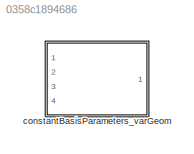
MODEL slx_0358c1894686
KIND library
CONFIG AbsTol = auto
CONFIG EnableMultiTasking = off
CONFIG FixedStep = auto
CONFIG MaxStep = auto
CONFIG MinStep = auto
CONFIG RelTol = 1e-3
CONFIG SampleTimeConstraint = Unconstrained
CONFIG Solver = VariableStepAuto
CONFIG SolverName = VariableStepAuto
CONFIG StartTime = 0.0
CONFIG StopTime = 10.0
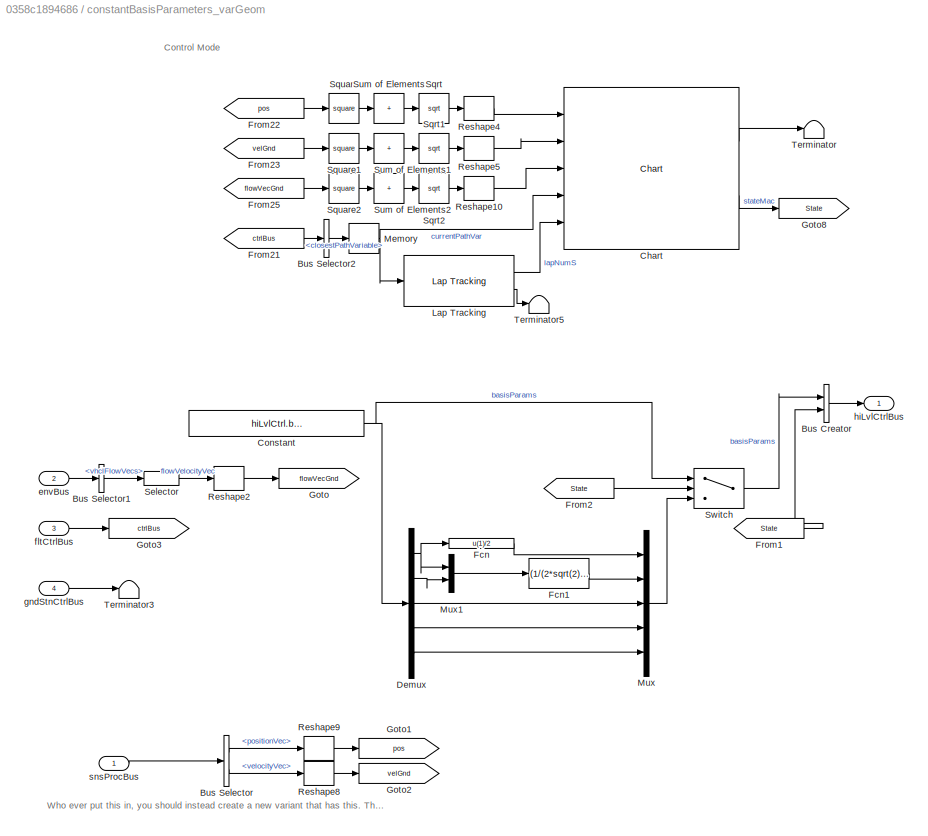
BLOCK [SubSystem] constantBasisParameters_varGeom
  InitFcn = initializeBussesFromBlock(gcb)
  LoadFcn = initializeBussesFromBlock(gcb)
  Ports = [4, 1]
  RequestExecContextInheritance = off
  StartFcn = initializeBussesFromBlock(gcb)
  VariantControl = strcmpi(HILVLCONTROLLER,'constantBasisParameters')
BLOCK [BusCreator] constantBasisParameters_varGeom/Bus Creator
  DisplayOption = bar
  InheritFromInputs = on
  Inputs = 2
  OutDataTypeStr = Bus: hiLvlCtrlBus
  Ports = [2, 1]
BLOCK [BusSelector] constantBasisParameters_varGeom/Bus Selector
  OutputSignals = positionVec,velocityVec
  Ports = [1, 2]
BLOCK [BusSelector] constantBasisParameters_varGeom/Bus Selector1
  OutputSignals = vhclFlowVecs
  Ports = [1, 1]
BLOCK [BusSelector] constantBasisParameters_varGeom/Bus Selector2
  OutputSignals = closestPathVariable
  Ports = [1, 1]
BLOCK [Reference] constantBasisParameters_varGeom/Chart  REF=MantaFSController_cl/MantaFSController/Chart
  Ports = [5, 2]
  SourceBlock = MantaFSController_cl/MantaFSController/Chart
BLOCK [Constant] constantBasisParameters_varGeom/Constant
  Value = hiLvlCtrl.basisParams.Value
BLOCK [Demux] constantBasisParameters_varGeom/Demux
  Outputs = 5
  Ports = [1, 5]
BLOCK [Fcn] constantBasisParameters_varGeom/Fcn
  Expr = u(1)/2
BLOCK [Fcn] constantBasisParameters_varGeom/Fcn1
  Expr = (1/(2*sqrt(2)))*sqrt(-u(1)^2+sqrt((u(2)^2*(4+u(2)^2)*u(1)^4))/(u(2)^2))
BLOCK [From] constantBasisParameters_varGeom/From1
  GotoTag = State
BLOCK [From] constantBasisParameters_varGeom/From2
  GotoTag = State
BLOCK [From] constantBasisParameters_varGeom/From21
  GotoTag = ctrlBus
BLOCK [From] constantBasisParameters_varGeom/From22
  GotoTag = pos
BLOCK [From] constantBasisParameters_varGeom/From23
  GotoTag = velGnd
BLOCK [From] constantBasisParameters_varGeom/From25
  GotoTag = flowVecGnd
BLOCK [Goto] constantBasisParameters_varGeom/Goto
  GotoTag = flowVecGnd
BLOCK [Goto] constantBasisParameters_varGeom/Goto1
  GotoTag = pos
BLOCK [Goto] constantBasisParameters_varGeom/Goto2
  GotoTag = velGnd
BLOCK [Goto] constantBasisParameters_varGeom/Goto3
  GotoTag = ctrlBus
BLOCK [Goto] constantBasisParameters_varGeom/Goto8
  GotoTag = State
BLOCK [Reference] constantBasisParameters_varGeom/Lap Tracking  REF=pathFollowingControllerManta_cl/pathFollowingControllerManta/Lap Tracking
  Ports = [1, 2]
  SourceBlock = pathFollowingControllerManta_cl/pathFollowingControllerManta/Lap Tracking
  SourceType = SubSystem
BLOCK [Memory] constantBasisParameters_varGeom/Memory
BLOCK [Mux] constantBasisParameters_varGeom/Mux
  DisplayOption = bar
  Inputs = 5
  Ports = [5, 1]
BLOCK [Mux] constantBasisParameters_varGeom/Mux1
  DisplayOption = bar
  Inputs = 2
  Ports = [2, 1]
BLOCK [Reshape] constantBasisParameters_varGeom/Reshape10
  Ports = [1, 1]
BLOCK [Reshape] constantBasisParameters_varGeom/Reshape2
  OutputDimensionality = Column vector (2-D)
  Ports = [1, 1]
BLOCK [Reshape] constantBasisParameters_varGeom/Reshape4
  Ports = [1, 1]
BLOCK [Reshape] constantBasisParameters_varGeom/Reshape5
  Ports = [1, 1]
BLOCK [Reshape] constantBasisParameters_varGeom/Reshape8
  OutputDimensionality = Column vector (2-D)
  Ports = [1, 1]
BLOCK [Reshape] constantBasisParameters_varGeom/Reshape9
  OutputDimensionality = Column vector (2-D)
  Ports = [1, 1]
BLOCK [Selector] constantBasisParameters_varGeom/Selector
  IndexOptions = Select all,Index vector (dialog)
  Indices = [1 3],5
  InputPortWidth = 3
  NumberOfDimensions = 2
  OutputSizes = 1,1
  Ports = [1, 1]
BLOCK [Sqrt] constantBasisParameters_varGeom/Sqrt
BLOCK [Sqrt] constantBasisParameters_varGeom/Sqrt1
BLOCK [Sqrt] constantBasisParameters_varGeom/Sqrt2
BLOCK [Math] constantBasisParameters_varGeom/Square
  Operator = square
  Ports = [1, 1]
BLOCK [Math] constantBasisParameters_varGeom/Square1
  Operator = square
  Ports = [1, 1]
BLOCK [Math] constantBasisParameters_varGeom/Square2
  Operator = square
  Ports = [1, 1]
BLOCK [Sum] constantBasisParameters_varGeom/Sum of Elements
  IconShape = rectangular
  Inputs = +
  Ports = [1, 1]
BLOCK [Sum] constantBasisParameters_varGeom/Sum of Elements1
  IconShape = rectangular
  Inputs = +
  Ports = [1, 1]
BLOCK [Sum] constantBasisParameters_varGeom/Sum of Elements2
  IconShape = rectangular
  Inputs = +
  Ports = [1, 1]
BLOCK [Switch] constantBasisParameters_varGeom/Switch
  Criteria = u2 > Threshold
  InputSameDT = off
  SaturateOnIntegerOverflow = off
  Threshold = 3
BLOCK [Terminator] constantBasisParameters_varGeom/Terminator
BLOCK [Terminator] constantBasisParameters_varGeom/Terminator3
BLOCK [Terminator] constantBasisParameters_varGeom/Terminator5
BLOCK [Inport] constantBasisParameters_varGeom/envBus
  OutDataTypeStr = Bus: envBus
  Port = 2
BLOCK [Inport] constantBasisParameters_varGeom/fltCtrlBus
  OutDataTypeStr = Bus: fltCtrlBus
  Port = 3
BLOCK [Inport] constantBasisParameters_varGeom/gndStnCtrlBus
  OutDataTypeStr = Bus: gndStnCtrlBus
  Port = 4
BLOCK [Outport] constantBasisParameters_varGeom/hiLvlCtrlBus
  OutDataTypeStr = Bus: hiLvlCtrlBus
  VectorParamsAs1DForOutWhenUnconnected = off
BLOCK [Inport] constantBasisParameters_varGeom/snsProcBus
  OutDataTypeStr = Bus: sensorsProcessingBus
ANNOTATION constantBasisParameters_varGeom: Control Mode
ANNOTATION constantBasisParameters_varGeom: Who ever put this in, you should instead create a new variant that has this. The purpose of this block is to ouput constant basis parameters. JR
LINE constantBasisParameters_varGeom/Bus Creator:1 -> constantBasisParameters_varGeom/hiLvlCtrlBus:1
LINE constantBasisParameters_varGeom/Bus Selector1:1 -> constantBasisParameters_varGeom/Selector:1
LINE constantBasisParameters_varGeom/Bus Selector2:1 -> constantBasisParameters_varGeom/Memory:1
LINE constantBasisParameters_varGeom/Bus Selector:1 -> constantBasisParameters_varGeom/Reshape9:1
LINE constantBasisParameters_varGeom/Bus Selector:2 -> constantBasisParameters_varGeom/Reshape8:1
LINE constantBasisParameters_varGeom/Chart:1 -> constantBasisParameters_varGeom/Terminator:1
LINE constantBasisParameters_varGeom/Chart:2 -> constantBasisParameters_varGeom/Goto8:1
NET constantBasisParameters_varGeom/Constant:1 -> constantBasisParameters_varGeom/Demux:1, constantBasisParameters_varGeom/Switch:1
NET constantBasisParameters_varGeom/Demux:1 -> constantBasisParameters_varGeom/Fcn:1, constantBasisParameters_varGeom/Mux1:1
LINE constantBasisParameters_varGeom/Demux:2 -> constantBasisParameters_varGeom/Mux1:2
LINE constantBasisParameters_varGeom/Demux:3 -> constantBasisParameters_varGeom/Mux:3
LINE constantBasisParameters_varGeom/Demux:4 -> constantBasisParameters_varGeom/Mux:4
LINE constantBasisParameters_varGeom/Demux:5 -> constantBasisParameters_varGeom/Mux:5
LINE constantBasisParameters_varGeom/Fcn1:1 -> constantBasisParameters_varGeom/Mux:2
LINE constantBasisParameters_varGeom/Fcn:1 -> constantBasisParameters_varGeom/Mux:1
LINE constantBasisParameters_varGeom/From1:1 -> constantBasisParameters_varGeom/Bus Creator:2
LINE constantBasisParameters_varGeom/From21:1 -> constantBasisParameters_varGeom/Bus Selector2:1
LINE constantBasisParameters_varGeom/From22:1 -> constantBasisParameters_varGeom/Square:1
LINE constantBasisParameters_varGeom/From23:1 -> constantBasisParameters_varGeom/Square1:1
LINE constantBasisParameters_varGeom/From25:1 -> constantBasisParameters_varGeom/Square2:1
LINE constantBasisParameters_varGeom/From2:1 -> constantBasisParameters_varGeom/Switch:2
LINE constantBasisParameters_varGeom/Lap Tracking:1 -> constantBasisParameters_varGeom/Chart:5
LINE constantBasisParameters_varGeom/Lap Tracking:2 -> constantBasisParameters_varGeom/Terminator5:1
NET constantBasisParameters_varGeom/Memory:1 -> constantBasisParameters_varGeom/Chart:4, constantBasisParameters_varGeom/Lap Tracking:1
LINE constantBasisParameters_varGeom/Mux1:1 -> constantBasisParameters_varGeom/Fcn1:1
LINE constantBasisParameters_varGeom/Mux:1 -> constantBasisParameters_varGeom/Switch:3
LINE constantBasisParameters_varGeom/Reshape10:1 -> constantBasisParameters_varGeom/Chart:3
LINE constantBasisParameters_varGeom/Reshape2:1 -> constantBasisParameters_varGeom/Goto:1
LINE constantBasisParameters_varGeom/Reshape4:1 -> constantBasisParameters_varGeom/Chart:1
LINE constantBasisParameters_varGeom/Reshape5:1 -> constantBasisParameters_varGeom/Chart:2
LINE constantBasisParameters_varGeom/Reshape8:1 -> constantBasisParameters_varGeom/Goto2:1
LINE constantBasisParameters_varGeom/Reshape9:1 -> constantBasisParameters_varGeom/Goto1:1
LINE constantBasisParameters_varGeom/Selector:1 -> constantBasisParameters_varGeom/Reshape2:1
LINE constantBasisParameters_varGeom/Sqrt1:1 -> constantBasisParameters_varGeom/Reshape5:1
LINE constantBasisParameters_varGeom/Sqrt2:1 -> constantBasisParameters_varGeom/Reshape10:1
LINE constantBasisParameters_varGeom/Sqrt:1 -> constantBasisParameters_varGeom/Reshape4:1
LINE constantBasisParameters_varGeom/Square1:1 -> constantBasisParameters_varGeom/Sum of Elements1:1
LINE constantBasisParameters_varGeom/Square2:1 -> constantBasisParameters_varGeom/Sum of Elements2:1
LINE constantBasisParameters_varGeom/Square:1 -> constantBasisParameters_varGeom/Sum of Elements:1
LINE constantBasisParameters_varGeom/Sum of Elements1:1 -> constantBasisParameters_varGeom/Sqrt1:1
LINE constantBasisParameters_varGeom/Sum of Elements2:1 -> constantBasisParameters_varGeom/Sqrt2:1
LINE constantBasisParameters_varGeom/Sum of Elements:1 -> constantBasisParameters_varGeom/Sqrt:1
LINE constantBasisParameters_varGeom/Switch:1 -> constantBasisParameters_varGeom/Bus Creator:1
LINE constantBasisParameters_varGeom/envBus:1 -> constantBasisParameters_varGeom/Bus Selector1:1
LINE constantBasisParameters_varGeom/fltCtrlBus:1 -> constantBasisParameters_varGeom/Goto3:1
LINE constantBasisParameters_varGeom/gndStnCtrlBus:1 -> constantBasisParameters_varGeom/Terminator3:1
LINE constantBasisParameters_varGeom/snsProcBus:1 -> constantBasisParameters_varGeom/Bus Selector:1
note: NET lines group one-source signal fan-out (src -> all destinations, sorted); 1:1 wires keep LINE
